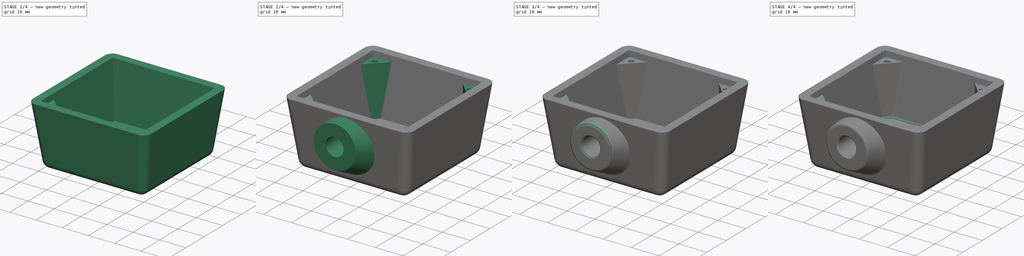
[diagram: build sequence overview — one tinted view per stage of 4, left to right]
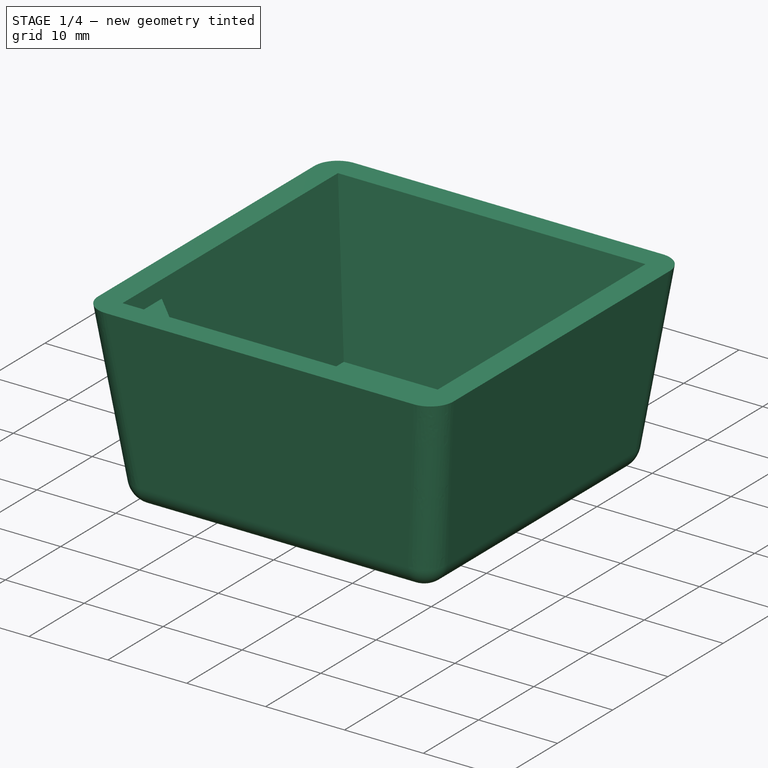
[diagram: stage 1 of 4 — iso view after this stage's code; geometry added in this stage tinted green]
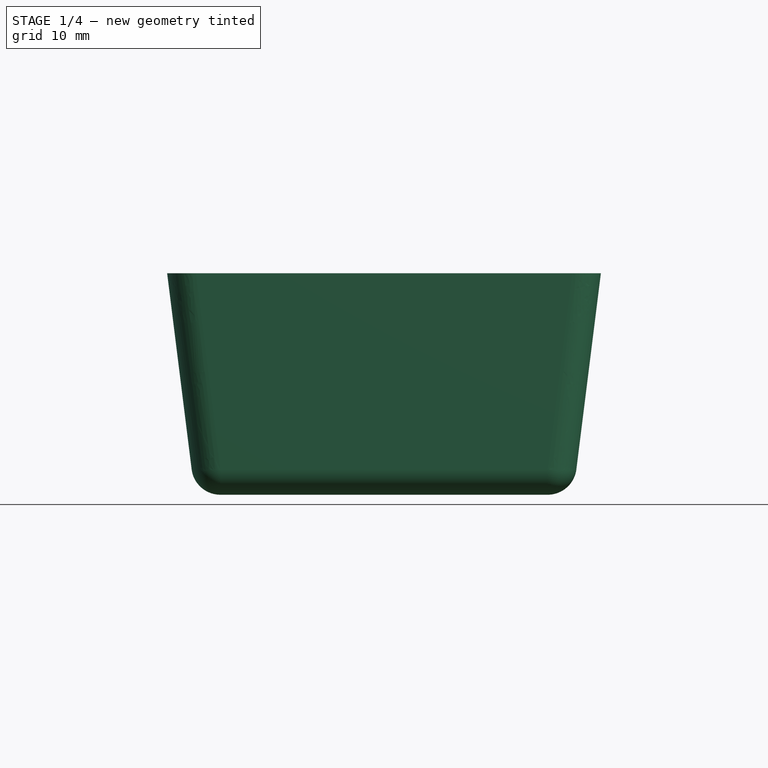
[diagram: stage 1 of 4 — front view after this stage's code; geometry added in this stage tinted green]
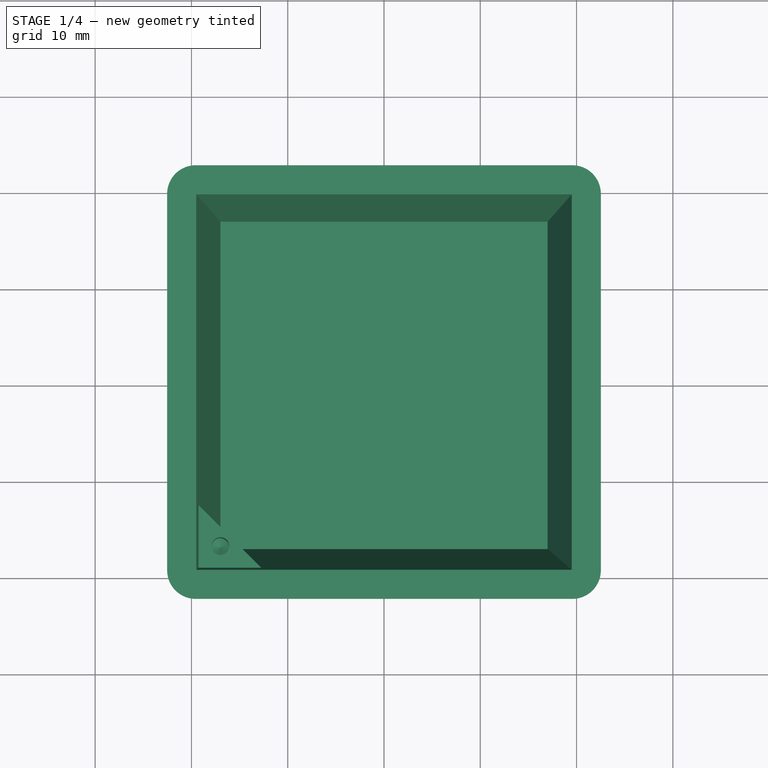
[diagram: stage 1 of 4 — top view after this stage's code; geometry added in this stage tinted green]
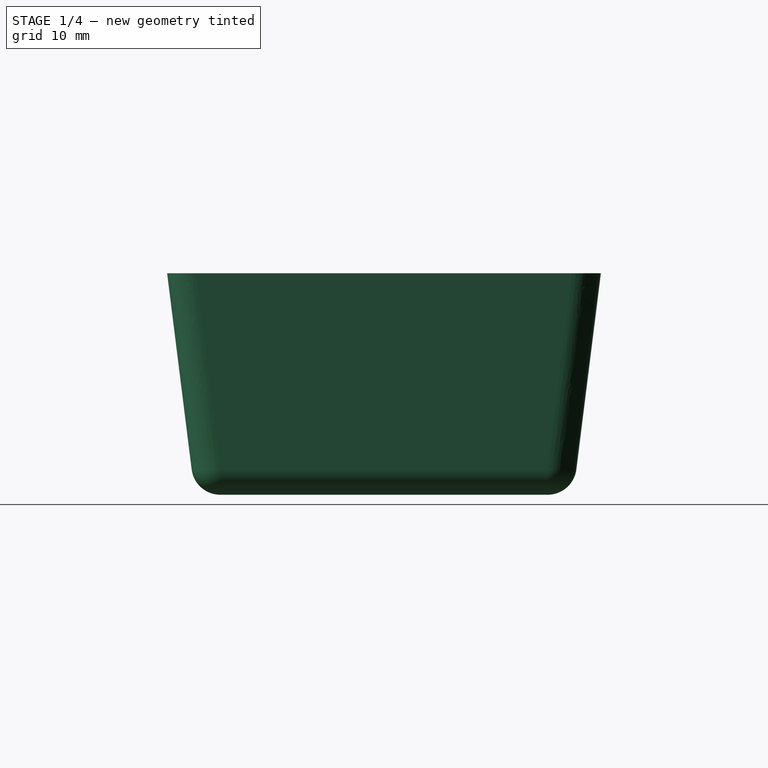
[diagram: stage 1 of 4 — right view after this stage's code; geometry added in this stage tinted green]
FCSTD DOCUMENT  (FreeCAD 0.18R4 (GitTag))
Label: Camera_case4
License: All rights reserved
LicenseURL: http://en.wikipedia.org/wiki/All_rights_reserved
objects: Sketcher::SketchObject×8, PartDesign::Fillet×4, PartDesign::AdditiveLoft×3, PartDesign::Hole×2, PartDesign::Chamfer×2, PartDesign::Thickness×1, PartDesign::PolarPattern×1, PartDesign::Pocket×1, PartDesign::Body×1, App::MeasureDistance×1
note: 29 computed .brp shape members not serialized (recipe doc carries the construction recipe); baked Part::Feature solids carry a one-line shape summary decoded from their .brp

FEATURE [Sketcher::SketchObject] Sketch  label="FrontOpening"
  MapMode = 5
  Support = -> [XY_Plane]
  sketch-geometry (6):
    g0: LineSegment StartX=-19.5 StartY=19.5 StartZ=0 EndX=19.5 EndY=19.5 EndZ=0
    g1: LineSegment StartX=19.5 StartY=19.5 StartZ=0 EndX=19.5 EndY=-19.5 EndZ=0
    g2: LineSegment StartX=19.5 StartY=-19.5 StartZ=0 EndX=-19.5 EndY=-19.5 EndZ=0
    g3: LineSegment StartX=-19.5 StartY=-19.5 StartZ=0 EndX=-19.5 EndY=19.5 EndZ=0
    g4: GeomPoint X=-3e-16 Y=19.5 Z=0
    g5: GeomPoint X=-19.5 Y=6e-16 Z=0
  constraints (14):
    c: Coincident(g0,g1)
    c: Coincident(g1,g2)
    c: Coincident(g2,g3)
    c: Coincident(g3,g0)
    c: Horizontal(g0)
    c: Horizontal(g2)
    c: Vertical(g1)
    c: Vertical(g3)
    c: Symmetric(g0,g0,g4)
    c: Symmetric(g2,g0,g5)
    c: Horizontal(g5,g-1)
    c: Vertical(g4,g-1)
    c: Equal(g0,g3)
    c: DistanceX(g0,g0) = 39
FEATURE [Sketcher::SketchObject] Sketch001  label="RearInside"
  AttachmentOffset = pos=(0,0,-20) rot=(0,0,1;0rad)
  MapMode = 5
  Placement = pos=(0,0,-20) rot=(0,0,1;0rad)
  Support = -> [XY_Plane]
  sketch-geometry (6):
    g0: LineSegment StartX=-17 StartY=17 StartZ=0 EndX=17 EndY=17 EndZ=0
    g1: LineSegment StartX=17 StartY=17 StartZ=0 EndX=17 EndY=-17 EndZ=0
    g2: LineSegment StartX=17 StartY=-17 StartZ=0 EndX=-17 EndY=-17 EndZ=0
    g3: LineSegment StartX=-17 StartY=-17 StartZ=0 EndX=-17 EndY=17 EndZ=0
    g4: GeomPoint X=0 Y=17 Z=0
    g5: GeomPoint X=-17 Y=1e-16 Z=0
  constraints (14):
    c: Coincident(g0,g1)
    c: Coincident(g1,g2)
    c: Coincident(g2,g3)
    c: Coincident(g3,g0)
    c: Horizontal(g0)
    c: Horizontal(g2)
    c: Vertical(g1)
    c: Vertical(g3)
    c: Symmetric(g0,g0,g4)
    c: Symmetric(g2,g0,g5)
    c: Horizontal(g5,g-1)
    c: Vertical(g4,g-1)
    c: Equal(g0,g3)
    c: DistanceX(g0,g0) = 34
FEATURE [PartDesign::AdditiveLoft] AdditiveLoft
  Closed = false
  Profile = -> Sketch001
  Ruled = false
  Sections = -> [Sketch]
FEATURE [PartDesign::Thickness] Thickness
  Base = -> AdditiveLoft [Face3]
  BaseFeature = -> AdditiveLoft
  Join = 0
  Mode = 0
  Value = 3
FEATURE [Sketcher::SketchObject] Sketch002  label="BossTop"
  AttachmentOffset = pos=(0,0,-2) rot=(0,0,1;0rad)
  MapMode = 5
  Placement = pos=(0,0,-2) rot=(0,0,1;0rad)
  Support = -> [XY_Plane]
  sketch-geometry (4):
    g0: LineSegment StartX=-12 StartY=-20 StartZ=0 EndX=-20 EndY=-20 EndZ=0
    g1: LineSegment StartX=-20 StartY=-20 StartZ=0 EndX=-20 EndY=-12 EndZ=0
    g2: LineSegment StartX=-20 StartY=-12 StartZ=0 EndX=-12 EndY=-20 EndZ=0
    g3: GeomPoint X=-16 Y=-16 Z=0
  constraints (10):
    c: Coincident(g0,g1)
    c: Horizontal(g0)
    c: Vertical(g1)
    c: Coincident(g2,g0)
    c: Coincident(g1,g2)
    c: Equal(g0,g1)
    c: DistanceX(g0,g0) = 8
    c: Symmetric(g0,g1,g3)
    c: DistanceX(g3,g-1) = 16
    c: DistanceY(g3,g-1) = 16
FEATURE [Sketcher::SketchObject] Sketch003  label="BossBot"
  MapMode = 5
  Placement = pos=(0,0,-20) rot=(0,0,1;0rad)
  Support = -> [Thickness]
  sketch-geometry (4):
    g0: LineSegment StartX=-14 StartY=-18 StartZ=0 EndX=-18 EndY=-18 EndZ=0
    g1: LineSegment StartX=-18 StartY=-18 StartZ=0 EndX=-18 EndY=-14 EndZ=0
    g2: LineSegment StartX=-18 StartY=-14 StartZ=0 EndX=-14 EndY=-18 EndZ=0
    g3: GeomPoint X=-16 Y=-16 Z=0
  constraints (10):
    c: Coincident(g0,g1)
    c: Horizontal(g0)
    c: Vertical(g1)
    c: Coincident(g2,g0)
    c: Coincident(g1,g2)
    c: Equal(g0,g1)
    c: DistanceX(g0,g0) = 4
    c: Symmetric(g1,g0,g3)
    c: DistanceX(g3,g-1) = 16
    c: DistanceY(g3,g-1) = 16
FEATURE [PartDesign::AdditiveLoft] AdditiveLoft001  label="Boss"
  BaseFeature = -> Thickness
  Closed = false
  Profile = -> Sketch002
  Ruled = false
  Sections = -> [Sketch003]
FEATURE [Sketcher::SketchObject] Sketch006
  ExternalGeometry = -> [Sketch002]
  MapMode = 5
  Placement = pos=(0,0,-2) rot=(0,0,1;0rad)
  Support = -> [AdditiveLoft001]
  sketch-geometry (1):
    g0: Circle CenterX=-17 CenterY=-17 CenterZ=0 NormalX=0 NormalY=0 NormalZ=1 AngleXU=0 Radius=1
  constraints (3):
    c: DistanceX(g0,g-1) = 17
    c: DistanceY(g0,g-1) = 17
    c: Radius(g0) = 1
FEATURE [PartDesign::Hole] Hole001
  BaseFeature = -> AdditiveLoft001
  Depth = 8
  DepthType = 0
  Diameter = 1.85
  DrillPoint = 1
  DrillPointAngle = 118
  HoleCutCountersinkAngle = 90
  HoleCutDepth = 0
  HoleCutDiameter = 0
  HoleCutType = 0
  ModelActualThread = false
  Profile = -> Sketch006
  Tapered = false
  TaperedAngle = 90
  ThreadAngle = 0
  ThreadClass = 0
  ThreadCutOffInner = 0
  ThreadCutOffOuter = 0
  ThreadDirection = 0
  ThreadFit = 0
  ThreadPitch = 0
  ThreadSize = 0
  ThreadType = 0
  Threaded = false
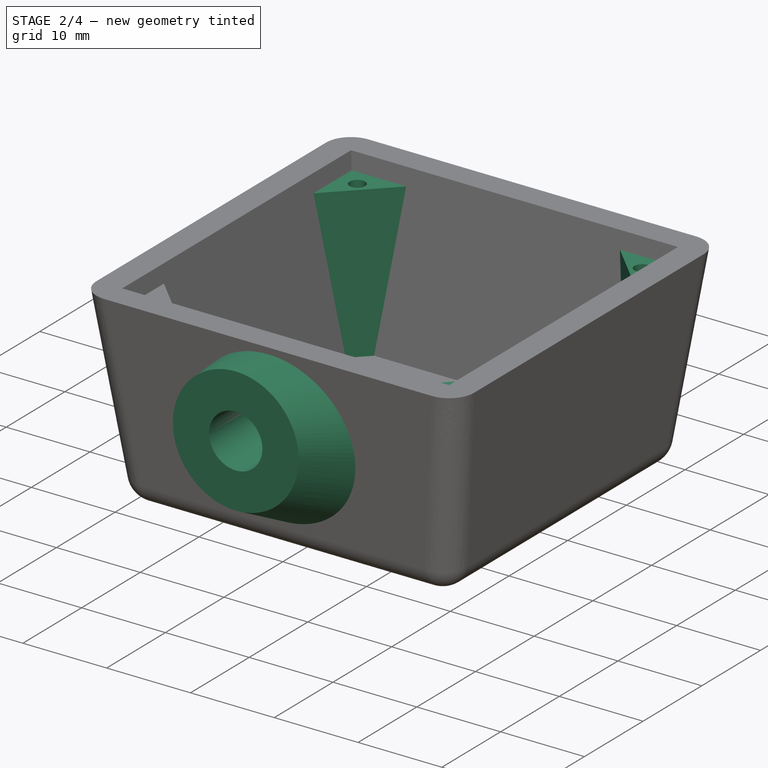
[diagram: stage 2 of 4 — iso view after this stage's code; geometry added in this stage tinted green]
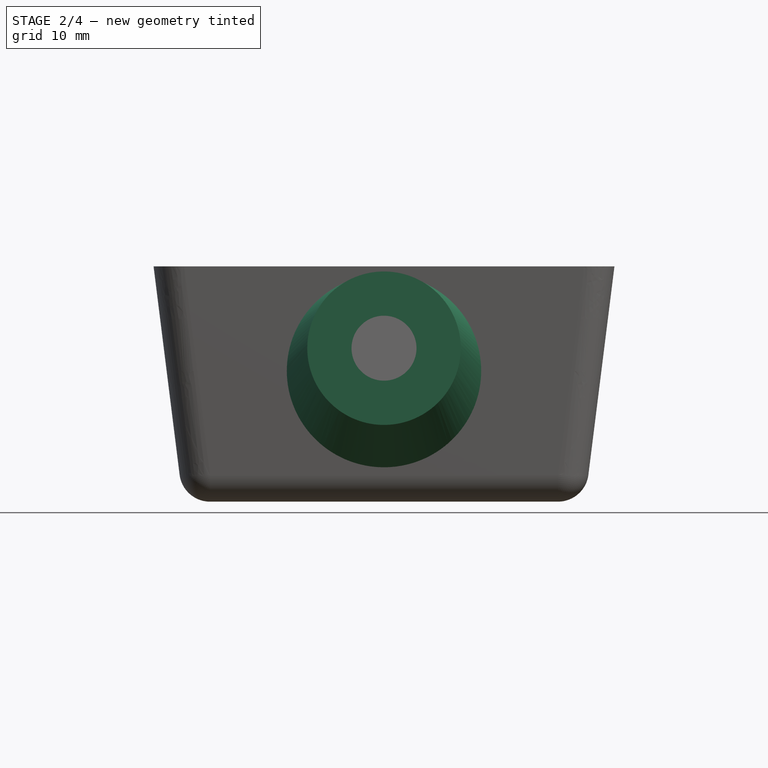
[diagram: stage 2 of 4 — front view after this stage's code; geometry added in this stage tinted green]
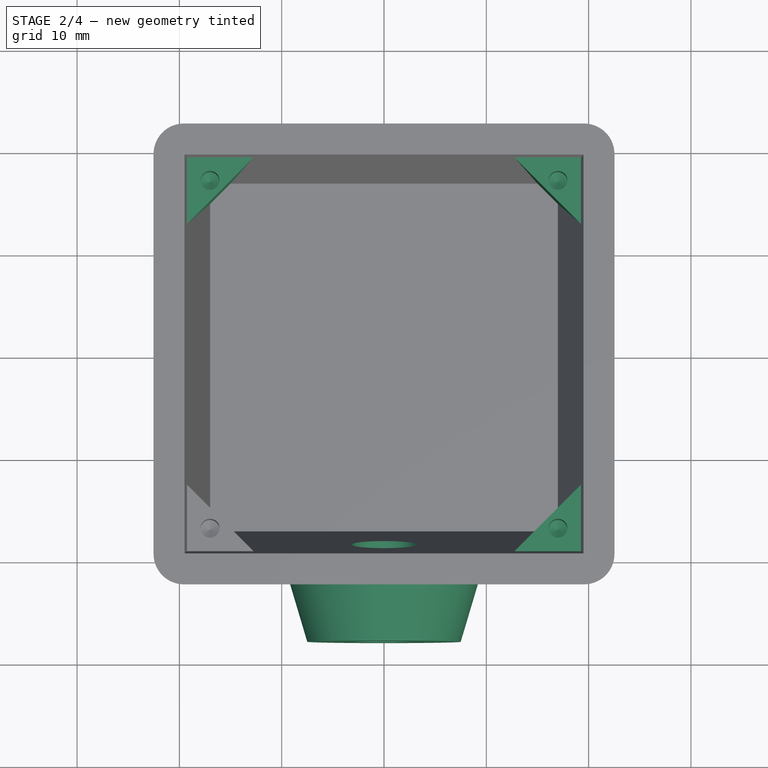
[diagram: stage 2 of 4 — top view after this stage's code; geometry added in this stage tinted green]
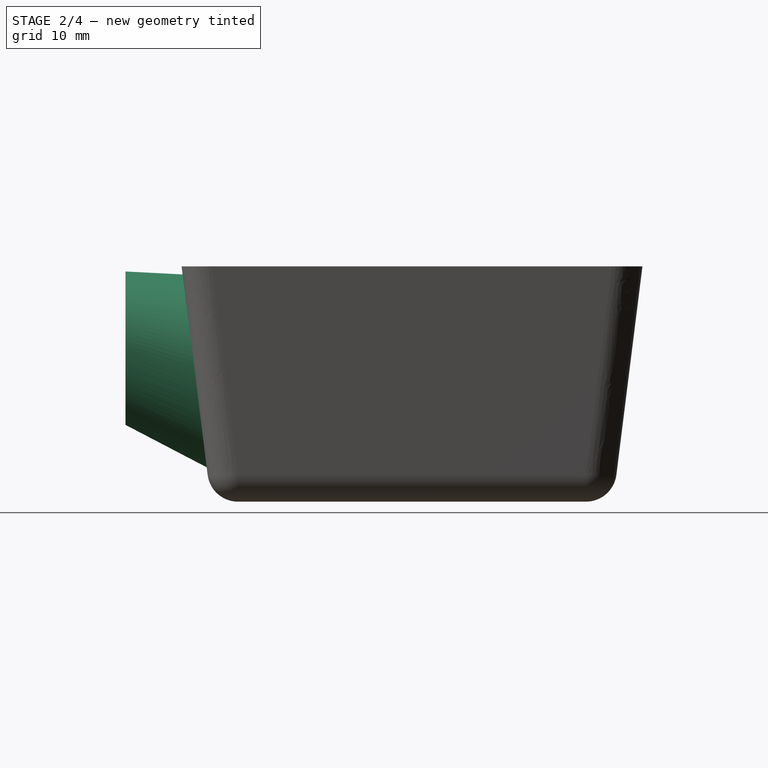
[diagram: stage 2 of 4 — right view after this stage's code; geometry added in this stage tinted green]
FEATURE [PartDesign::PolarPattern] PolarPattern
  Angle = 360
  Axis = -> Z_Axis
  BaseFeature = -> Hole001
  Occurrences = 4
  Originals = -> [AdditiveLoft001,Hole001]
FEATURE [Sketcher::SketchObject] Sketch007
  MapMode = 5
  Placement = pos=(1e-16,-22.1768,-2.7721) rot=(1,0,0;1.69515rad)
  Support = -> [PolarPattern]
  sketch-geometry (1):
    g0: Circle CenterX=0 CenterY=-7.5 CenterZ=0 NormalX=0 NormalY=0 NormalZ=1 AngleXU=0 Radius=9.5
  constraints (3):
    c: Vertical(g-1,g0)
    c: DistanceY(g0,g-1) = 7.5
    c: Radius(g0) = 9.5
FEATURE [Sketcher::SketchObject] Sketch008
  AttachmentOffset = pos=(0,0,28) rot=(0,0,1;0rad)
  MapMode = 5
  Placement = pos=(0,-28,-6.2e-15) rot=(1,0,0;1.5708rad)
  Support = -> [XZ_Plane]
  sketch-geometry (1):
    g0: Circle CenterX=0 CenterY=-8 CenterZ=0 NormalX=0 NormalY=0 NormalZ=1 AngleXU=0 Radius=7.5
  constraints (3):
    c: Radius(g0) = 7.5
    c: Vertical(g0,g-1)
    c: DistanceY(g0,g-1) = 8
FEATURE [PartDesign::AdditiveLoft] AdditiveLoft002
  BaseFeature = -> PolarPattern
  Closed = false
  Profile = -> Sketch007
  Ruled = false
  Sections = -> [Sketch008]
FEATURE [PartDesign::Hole] Hole
  BaseFeature = -> AdditiveLoft002
  Depth = 15
  DepthType = 0
  Diameter = 6.35
  DrillPoint = 0
  DrillPointAngle = 118
  HoleCutCountersinkAngle = 90
  HoleCutDepth = 0
  HoleCutDiameter = 0
  HoleCutType = 0
  ModelActualThread = false
  Profile = -> AdditiveLoft002 [Face41]
  Tapered = false
  TaperedAngle = 90
  ThreadAngle = 0
  ThreadClass = 0
  ThreadCutOffInner = 0
  ThreadCutOffOuter = 0
  ThreadDirection = 0
  ThreadFit = 0
  ThreadPitch = 0
  ThreadSize = 0
  ThreadType = 0
  Threaded = false
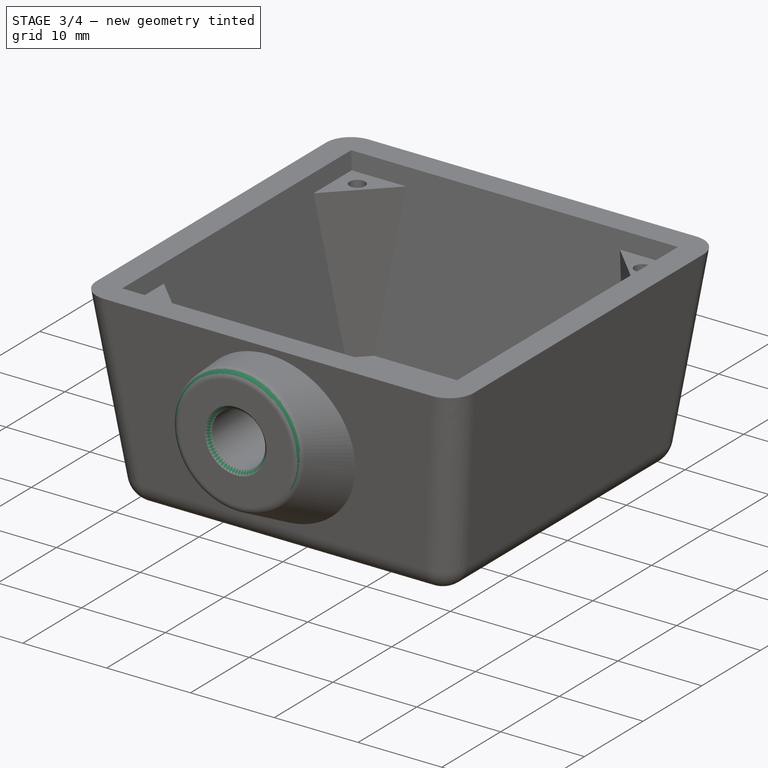
[diagram: stage 3 of 4 — iso view after this stage's code; geometry added in this stage tinted green]
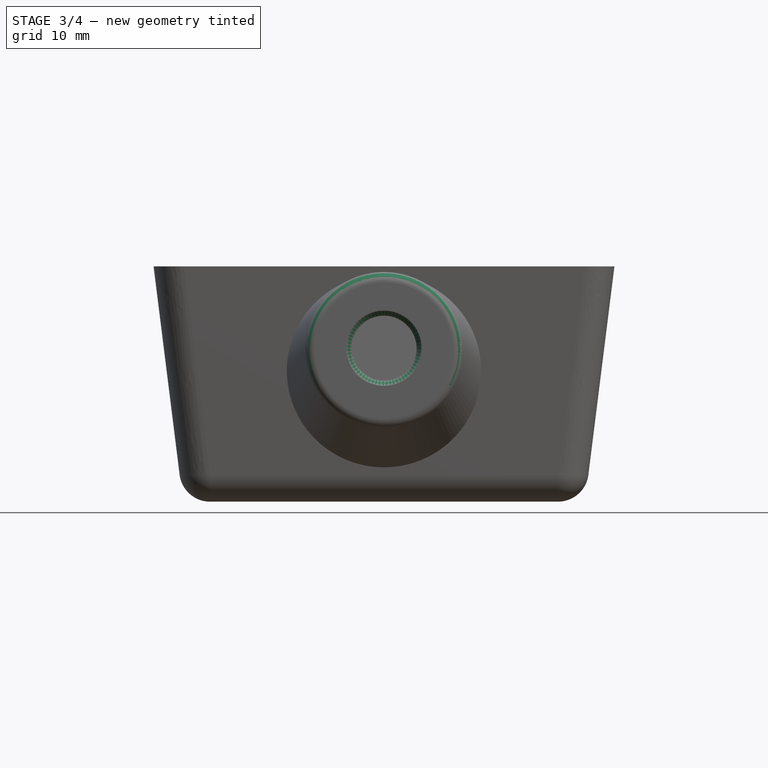
[diagram: stage 3 of 4 — front view after this stage's code; geometry added in this stage tinted green]
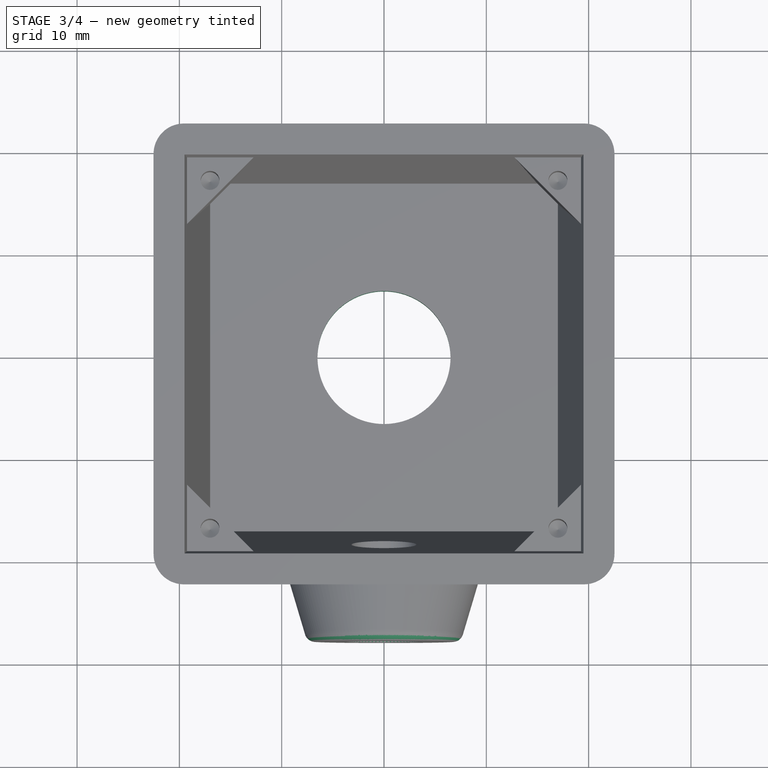
[diagram: stage 3 of 4 — top view after this stage's code; geometry added in this stage tinted green]
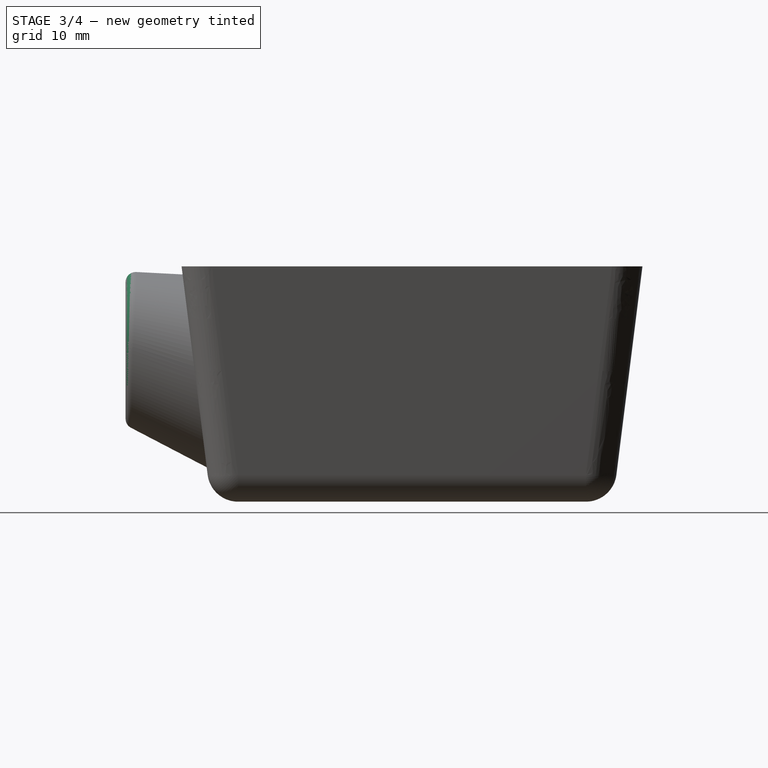
[diagram: stage 3 of 4 — right view after this stage's code; geometry added in this stage tinted green]
FEATURE [PartDesign::Fillet] Fillet
  Base = -> Hole [Edge74]
  BaseFeature = -> Hole
  Radius = 1
FEATURE [PartDesign::Chamfer] Chamfer
  Base = -> Fillet [Edge2]
  BaseFeature = -> Fillet
  Size = 0.5
FEATURE [Sketcher::SketchObject] Sketch009
  MapMode = 5
  Placement = pos=(0,0,-20) rot=(0,0,1;0rad)
  Support = -> [Chamfer]
  sketch-geometry (1):
    g0: Circle CenterX=0 CenterY=0 CenterZ=0 NormalX=0 NormalY=0 NormalZ=1 AngleXU=0 Radius=6.5
  constraints (2):
    c: Coincident(g0,g-1)
    c: Radius(g0) = 6.5
FEATURE [PartDesign::Pocket] Pocket
  BaseFeature = -> Chamfer
  Length = 5
  Length2 = 100
  Profile = -> Sketch009
  Type = 1
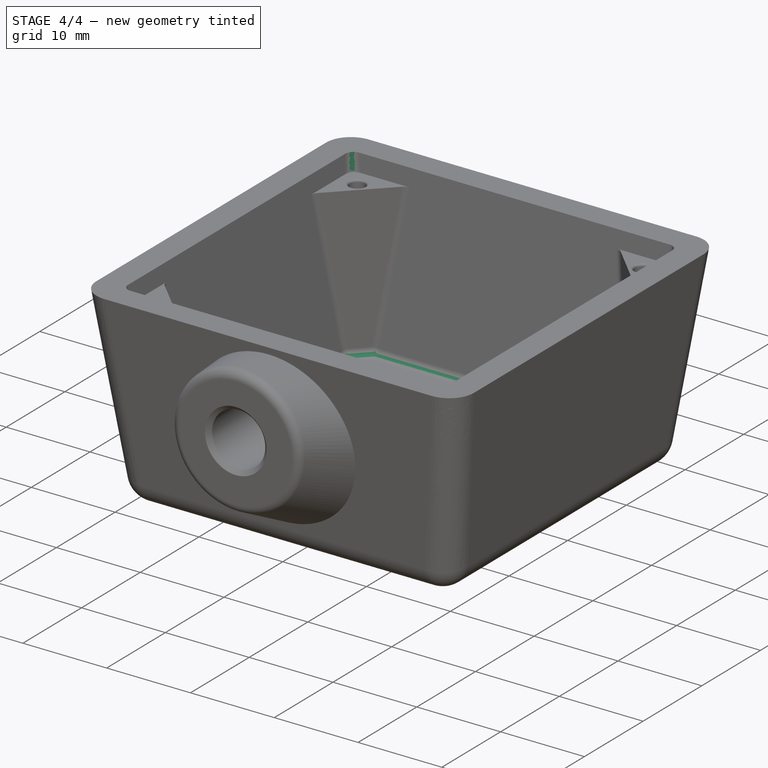
[diagram: stage 4 of 4 — iso view after this stage's code; geometry added in this stage tinted green]
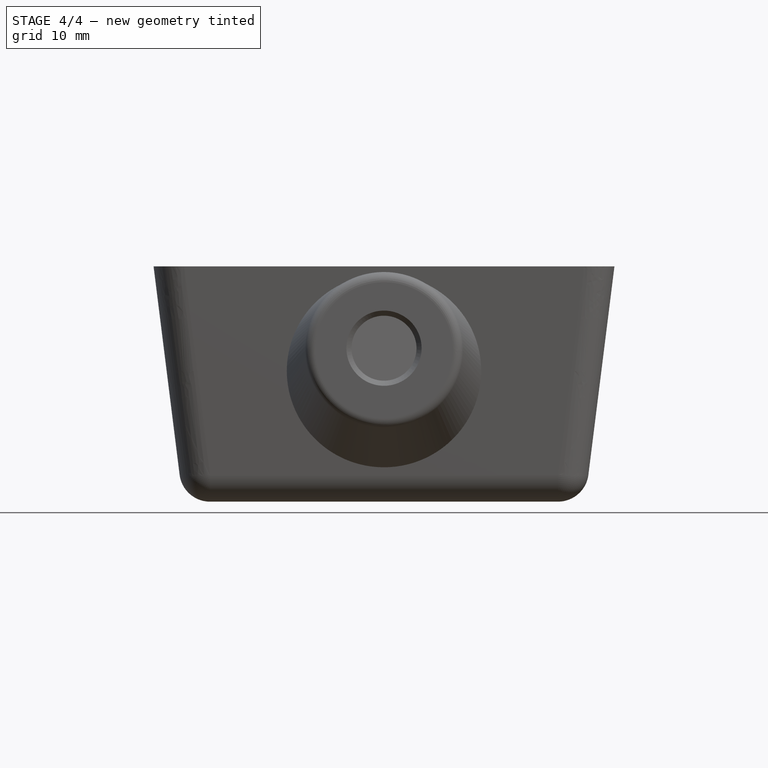
[diagram: stage 4 of 4 — front view after this stage's code; geometry added in this stage tinted green]
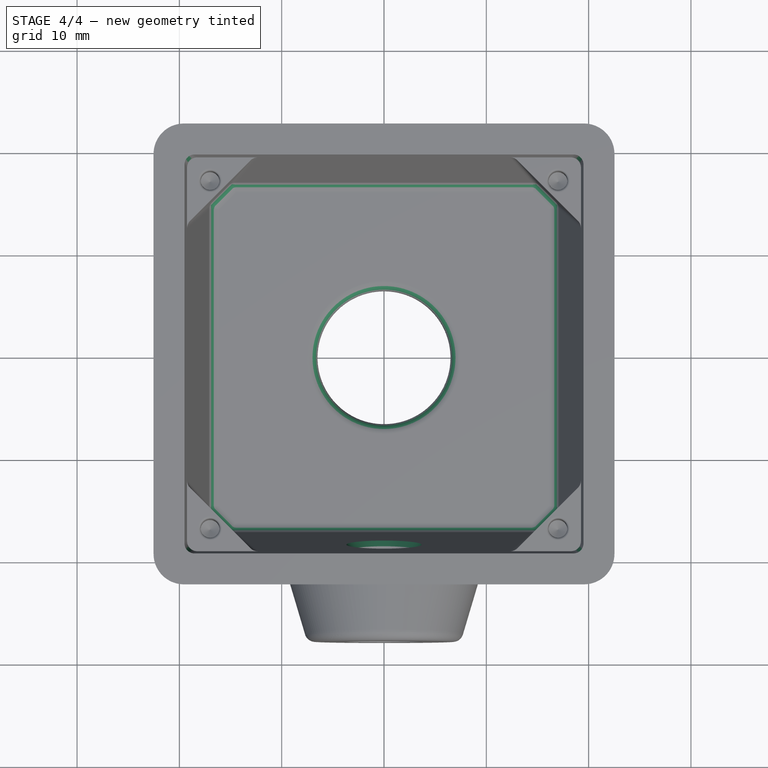
[diagram: stage 4 of 4 — top view after this stage's code; geometry added in this stage tinted green]
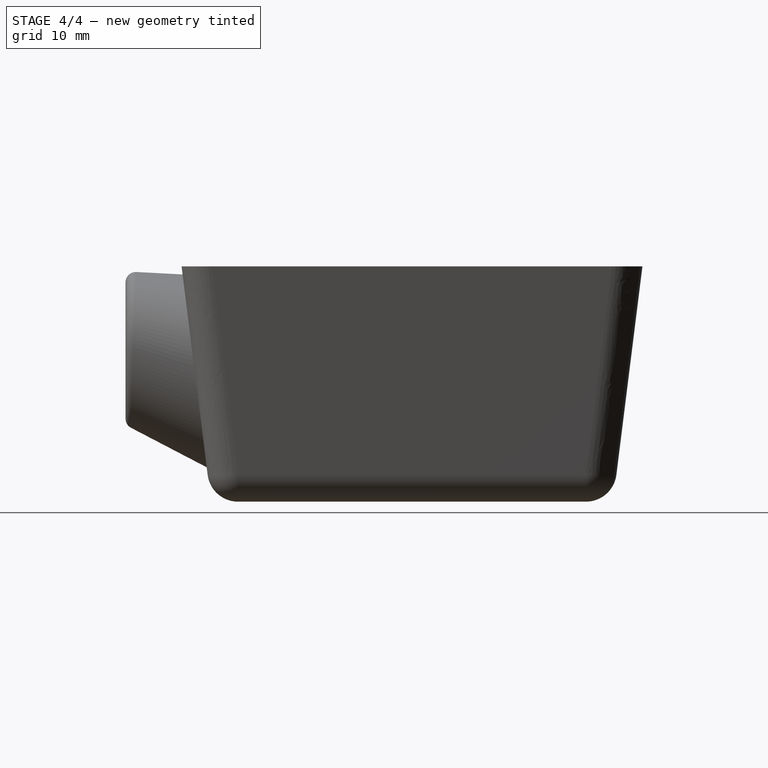
[diagram: stage 4 of 4 — right view after this stage's code; geometry added in this stage tinted green]
FEATURE [PartDesign::Fillet] Fillet001
  Base = -> Pocket [Edge53,Edge83]
  BaseFeature = -> Pocket
  Radius = 1
FEATURE [PartDesign::Chamfer] Chamfer001
  Base = -> Fillet001 [Edge27,Edge26]
  BaseFeature = -> Fillet001
  Size = 0.5
FEATURE [PartDesign::Fillet] Fillet002
  Base = -> Chamfer001 [Edge9,Edge37,Edge36,Edge7,Edge39,Edge6,Edge15,Edge5,Edge2,Edge31,Face8,Edge35,Edge49,Edge33,Edge17,Edge48,Edge12]
  BaseFeature = -> Chamfer001
  Radius = 1
FEATURE [PartDesign::Fillet] Fillet003
  Base = -> Fillet002 [Edge47,Edge131,Edge122,Edge18]
  BaseFeature = -> Fillet002
  Radius = 0.25
FEATURE [PartDesign::Body] Body
  Group = -> [Sketch,Sketch001,AdditiveLoft,Thickness,Sketch002,Sketch003,AdditiveLoft001,Sketch006,Hole001,PolarPattern,Sketch007,Sketch008,AdditiveLoft002,Hole,Fillet,Chamfer,Sketch009,Pocket,Fillet001,Chamfer001,Fillet002,Fillet003]
  Origin = -> Origin
  Tip = -> Fillet003
FEATURE [App::MeasureDistance] Distance  label="Distance: 31.97 mm"
  Distance = 31.9688
  P1 = (-15.8726,-16.1274,0)
  P2 = (16.033,-16.3325,-2)
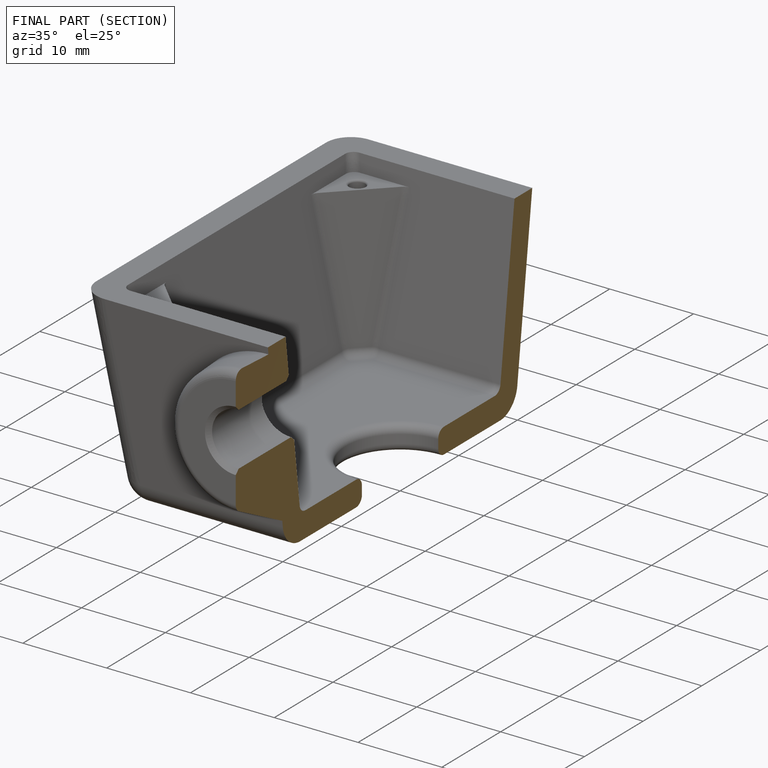
[diagram: finished part — half-section view (interior)]
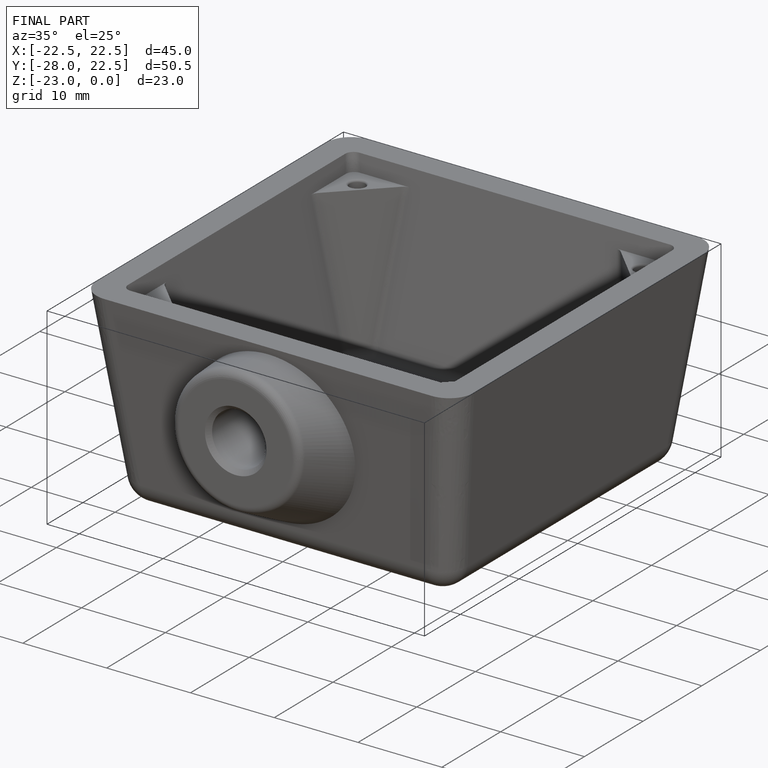
[diagram: finished part — iso view with bounding-box wireframe]
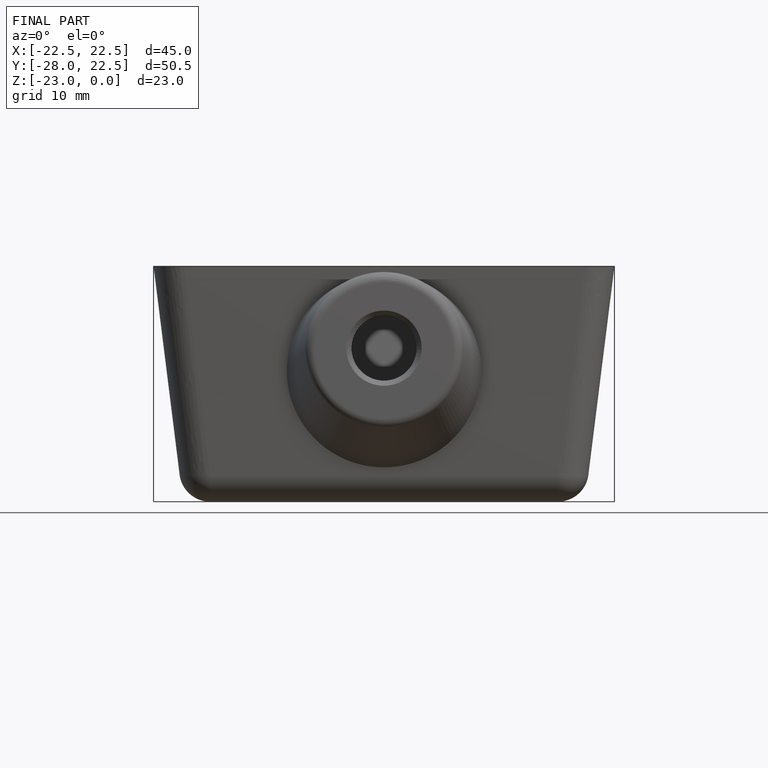
[diagram: finished part — front view with bounding-box wireframe]
